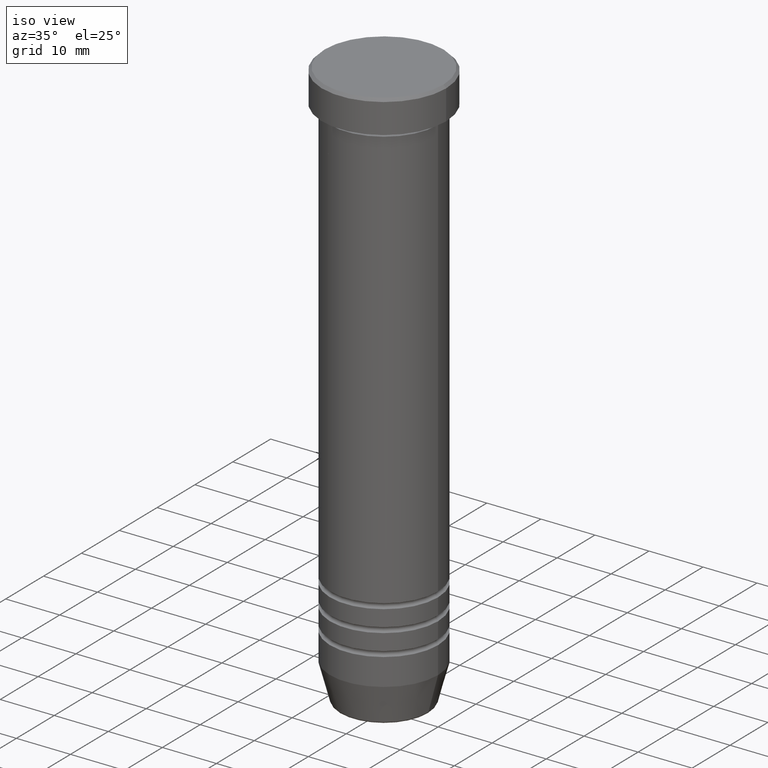
[diagram: clean part render]
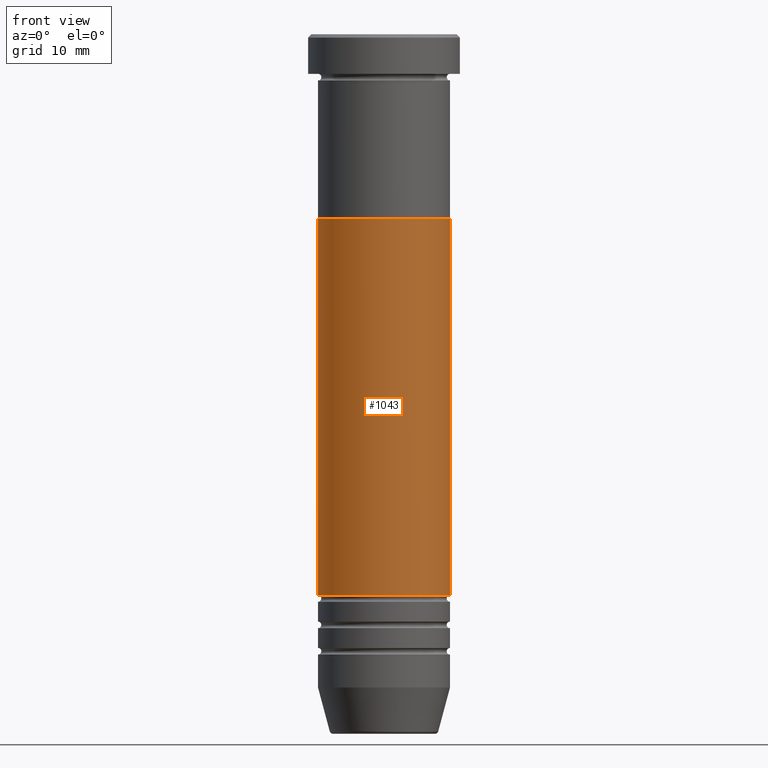
[diagram: tour spotlight — one face highlighted and labeled with its STEP entity id]
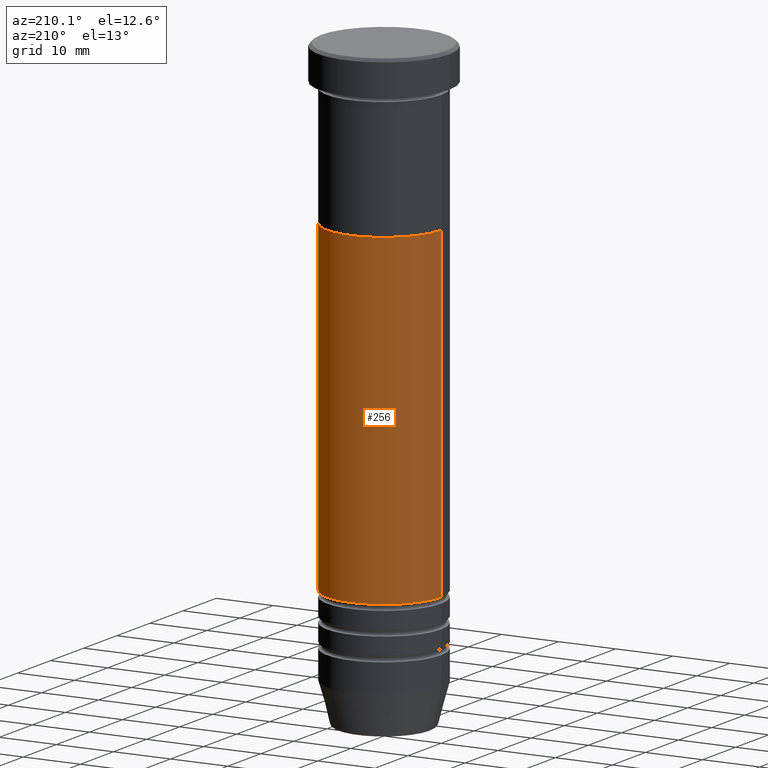
[diagram: tour spotlight — one face highlighted and labeled with its STEP entity id]
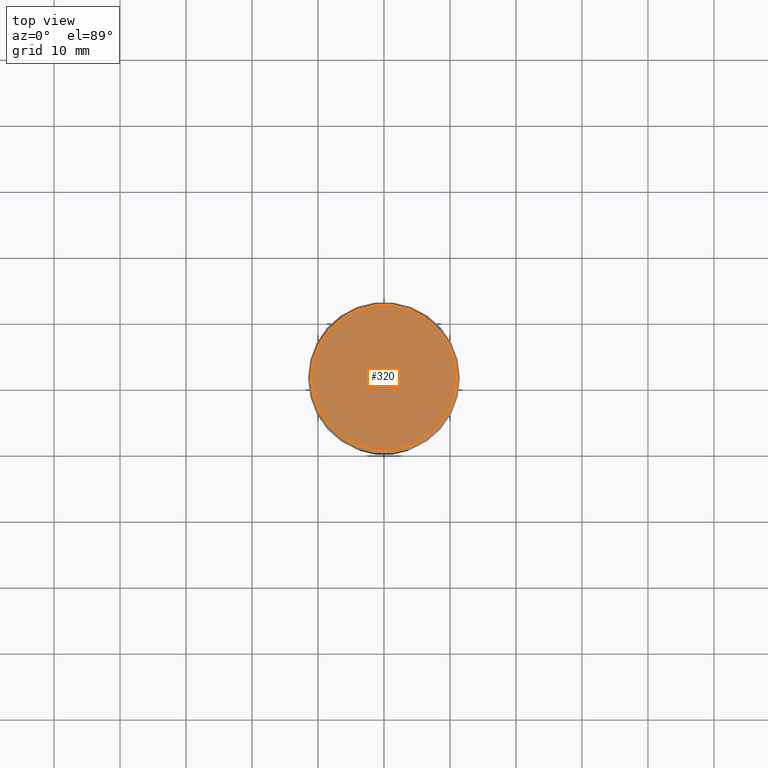
[diagram: tour spotlight — one face highlighted and labeled with its STEP entity id]
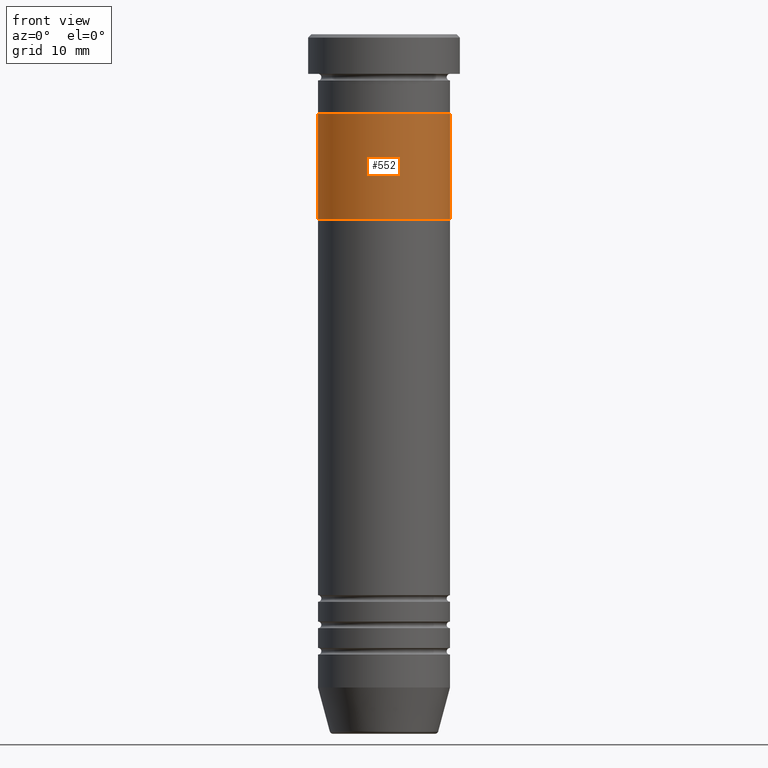
[diagram: tour spotlight — one face highlighted and labeled with its STEP entity id]
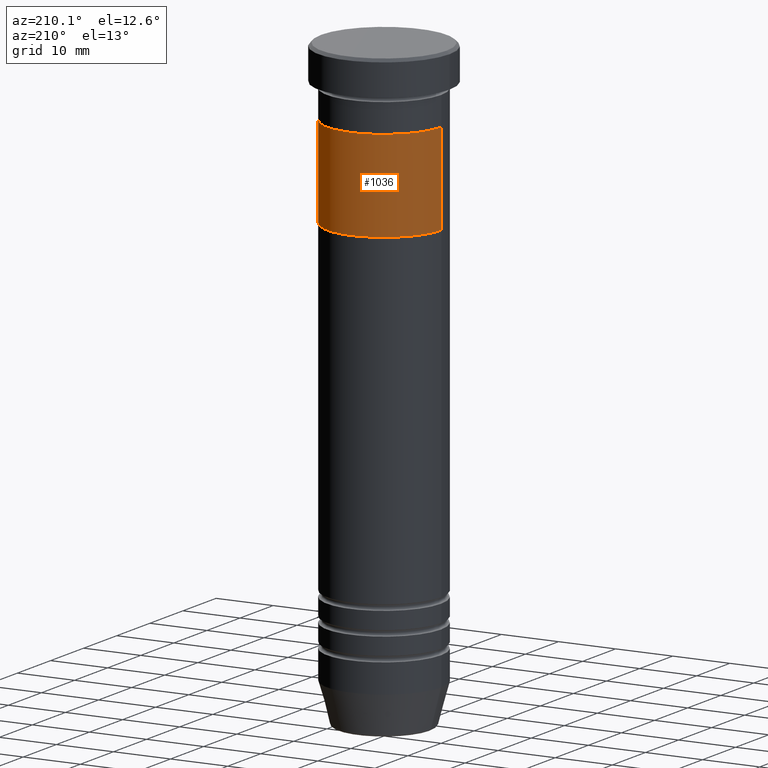
[diagram: tour spotlight — one face highlighted and labeled with its STEP entity id]
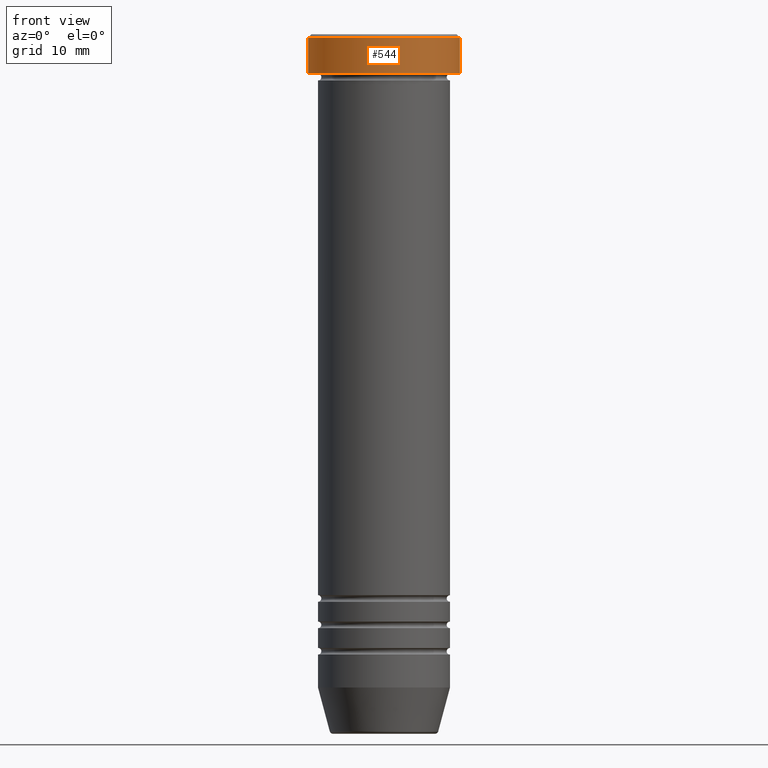
[diagram: tour spotlight — one face highlighted and labeled with its STEP entity id]
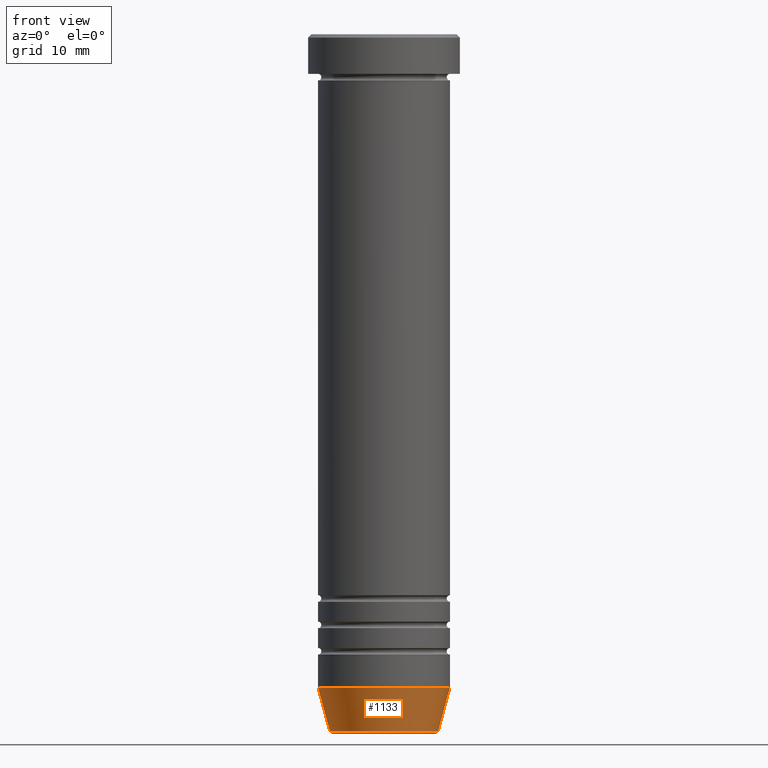
[diagram: tour spotlight — one face highlighted and labeled with its STEP entity id]
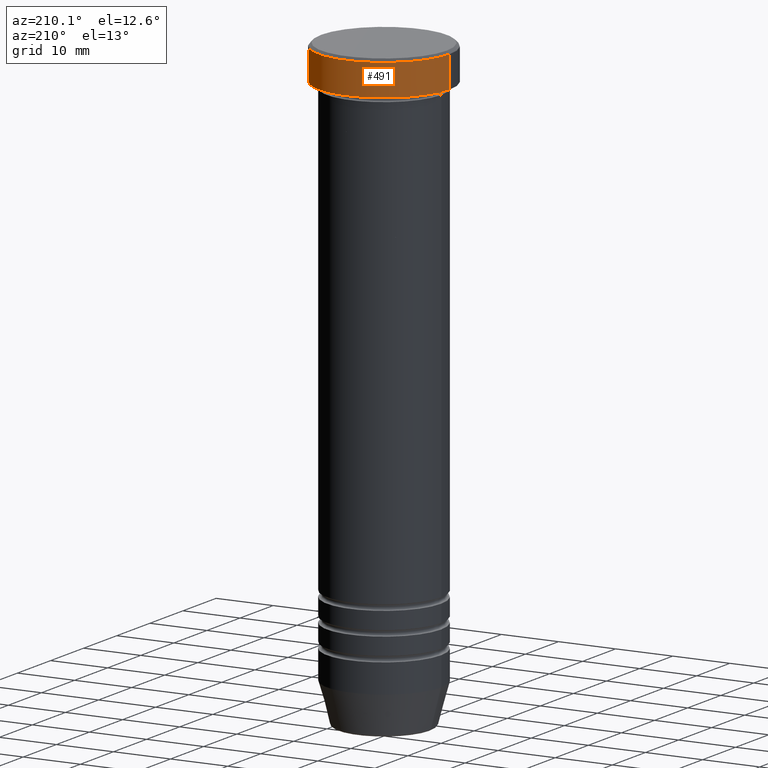
[diagram: tour spotlight — one face highlighted and labeled with its STEP entity id]
A machine part: a face-by-face anatomy tour. The part has 43 B-rep faces; the first image is the clean iso view, then the 8 largest visible faces are spotlighted one at a time (largest first), each with its STEP entity span.

Face 1 — front view, entity #1043. In plain terms, the highlighted cylindrical surface (partial cylindrical patch) has radius 10 mm, axis along (-0, -0, 1).
Definition (entity closure, byte-faithful):
#63 = EDGE_CURVE ( 'NONE', #527, #1062, #323, .T. ) ;
#109 = DIRECTION ( 'NONE',  ( 1.000000000000000000, 0.000000000000000000, 0.000000000000000000 ) ) ;
#119 = CARTESIAN_POINT ( 'NONE',  ( -10.00000000000000178, 1.224646799147353454E-15, -28.00000000000000000 ) ) ;
#137 = ORIENTED_EDGE ( 'NONE', *, *, #250, .F. ) ;
#154 = LINE ( 'NONE', #653, #208 ) ;
#208 = VECTOR ( 'NONE', #676, 1000.000000000000000 ) ;
#212 = CARTESIAN_POINT ( 'NONE',  ( -9.999999999999996447, 1.224646799147352862E-15, 0.000000000000000000 ) ) ;
#250 = EDGE_CURVE ( 'NONE', #527, #298, #738, .T. ) ;
#280 = ORIENTED_EDGE ( 'NONE', *, *, #392, .T. ) ;
#298 = VERTEX_POINT ( 'NONE', #119 ) ;
#323 = CIRCLE ( 'NONE', #452, 9.999999999999992895 ) ;
#342 = DIRECTION ( 'NONE',  ( 1.000000000000000000, 0.000000000000000000, 0.000000000000000000 ) ) ;
#351 = EDGE_CURVE ( 'NONE', #298, #782, #645, .T. ) ;
#359 = CARTESIAN_POINT ( 'NONE',  ( -9.999999999999992895, 1.224646799147352665E-15, -84.99999999999998579 ) ) ;
#360 = CYLINDRICAL_SURFACE ( 'NONE', #881, 9.999999999999996447 ) ;
#392 = EDGE_CURVE ( 'NONE', #1062, #782, #154, .T. ) ;
#452 = AXIS2_PLACEMENT_3D ( 'NONE', #1071, #1056, #342 ) ;
#469 = CARTESIAN_POINT ( 'NONE',  ( 9.999999999999992895, 0.000000000000000000, -84.99999999999998579 ) ) ;
#496 = AXIS2_PLACEMENT_3D ( 'NONE', #541, #884, #549 ) ;
#527 = VERTEX_POINT ( 'NONE', #359 ) ;
#541 = CARTESIAN_POINT ( 'NONE',  ( 0.000000000000000000, 0.000000000000000000, -28.00000000000000000 ) ) ;
#549 = DIRECTION ( 'NONE',  ( 1.000000000000000000, 0.000000000000000000, 0.000000000000000000 ) ) ;
#588 = ORIENTED_EDGE ( 'NONE', *, *, #351, .F. ) ;
#614 = EDGE_LOOP ( 'NONE', ( #137, #852, #280, #588 ) ) ;
#645 = CIRCLE ( 'NONE', #496, 10.00000000000000000 ) ;
#653 = CARTESIAN_POINT ( 'NONE',  ( 9.999999999999996447, 0.000000000000000000, 0.000000000000000000 ) ) ;
#676 = DIRECTION ( 'NONE',  ( -0.000000000000000000, -0.000000000000000000, 1.000000000000000000 ) ) ;
#687 = CARTESIAN_POINT ( 'NONE',  ( 10.00000000000000000, 0.000000000000000000, -28.00000000000000000 ) ) ;
#738 = LINE ( 'NONE', #212, #870 ) ;
#782 = VERTEX_POINT ( 'NONE', #687 ) ;
#803 = CARTESIAN_POINT ( 'NONE',  ( 0.000000000000000000, 0.000000000000000000, 0.000000000000000000 ) ) ;
#852 = ORIENTED_EDGE ( 'NONE', *, *, #63, .T. ) ;
#866 = FACE_OUTER_BOUND ( 'NONE', #614, .T. ) ;
#870 = VECTOR ( 'NONE', #1105, 1000.000000000000000 ) ;
#881 = AXIS2_PLACEMENT_3D ( 'NONE', #803, #904, #109 ) ;
#884 = DIRECTION ( 'NONE',  ( -0.000000000000000000, -0.000000000000000000, 1.000000000000000000 ) ) ;
#904 = DIRECTION ( 'NONE',  ( -0.000000000000000000, -0.000000000000000000, 1.000000000000000000 ) ) ;
#1043 = ADVANCED_FACE ( 'NONE', ( #866 ), #360, .T. ) ;
#1056 = DIRECTION ( 'NONE',  ( -0.000000000000000000, -0.000000000000000000, 1.000000000000000000 ) ) ;
#1062 = VERTEX_POINT ( 'NONE', #469 ) ;
#1071 = CARTESIAN_POINT ( 'NONE',  ( 0.000000000000000000, 0.000000000000000000, -84.99999999999998579 ) ) ;
#1105 = DIRECTION ( 'NONE',  ( -0.000000000000000000, -0.000000000000000000, 1.000000000000000000 ) ) ;

Face 2 — auxiliary view, entity #256. In plain terms, the highlighted cylindrical surface (partial cylindrical patch) has radius 10 mm, axis along (-0, -0, 1).
Definition (entity closure, byte-faithful):
#106 = AXIS2_PLACEMENT_3D ( 'NONE', #605, #352, #970 ) ;
#119 = CARTESIAN_POINT ( 'NONE',  ( -10.00000000000000178, 1.224646799147353454E-15, -28.00000000000000000 ) ) ;
#135 = CYLINDRICAL_SURFACE ( 'NONE', #455, 9.999999999999996447 ) ;
#154 = LINE ( 'NONE', #653, #208 ) ;
#208 = VECTOR ( 'NONE', #676, 1000.000000000000000 ) ;
#212 = CARTESIAN_POINT ( 'NONE',  ( -9.999999999999996447, 1.224646799147352862E-15, 0.000000000000000000 ) ) ;
#229 = CIRCLE ( 'NONE', #106, 9.999999999999992895 ) ;
#243 = CARTESIAN_POINT ( 'NONE',  ( 0.000000000000000000, 0.000000000000000000, 0.000000000000000000 ) ) ;
#250 = EDGE_CURVE ( 'NONE', #527, #298, #738, .T. ) ;
#256 = ADVANCED_FACE ( 'NONE', ( #1029 ), #135, .T. ) ;
#298 = VERTEX_POINT ( 'NONE', #119 ) ;
#304 = ORIENTED_EDGE ( 'NONE', *, *, #990, .F. ) ;
#332 = EDGE_LOOP ( 'NONE', ( #390, #718, #304, #641 ) ) ;
#352 = DIRECTION ( 'NONE',  ( -0.000000000000000000, -0.000000000000000000, 1.000000000000000000 ) ) ;
#359 = CARTESIAN_POINT ( 'NONE',  ( -9.999999999999992895, 1.224646799147352665E-15, -84.99999999999998579 ) ) ;
#390 = ORIENTED_EDGE ( 'NONE', *, *, #794, .T. ) ;
#392 = EDGE_CURVE ( 'NONE', #1062, #782, #154, .T. ) ;
#455 = AXIS2_PLACEMENT_3D ( 'NONE', #243, #594, #956 ) ;
#469 = CARTESIAN_POINT ( 'NONE',  ( 9.999999999999992895, 0.000000000000000000, -84.99999999999998579 ) ) ;
#527 = VERTEX_POINT ( 'NONE', #359 ) ;
#594 = DIRECTION ( 'NONE',  ( -0.000000000000000000, -0.000000000000000000, 1.000000000000000000 ) ) ;
#605 = CARTESIAN_POINT ( 'NONE',  ( 0.000000000000000000, 0.000000000000000000, -84.99999999999998579 ) ) ;
#641 = ORIENTED_EDGE ( 'NONE', *, *, #392, .F. ) ;
#653 = CARTESIAN_POINT ( 'NONE',  ( 9.999999999999996447, 0.000000000000000000, 0.000000000000000000 ) ) ;
#672 = DIRECTION ( 'NONE',  ( -0.000000000000000000, -0.000000000000000000, 1.000000000000000000 ) ) ;
#676 = DIRECTION ( 'NONE',  ( -0.000000000000000000, -0.000000000000000000, 1.000000000000000000 ) ) ;
#687 = CARTESIAN_POINT ( 'NONE',  ( 10.00000000000000000, 0.000000000000000000, -28.00000000000000000 ) ) ;
#718 = ORIENTED_EDGE ( 'NONE', *, *, #250, .T. ) ;
#738 = LINE ( 'NONE', #212, #870 ) ;
#782 = VERTEX_POINT ( 'NONE', #687 ) ;
#794 = EDGE_CURVE ( 'NONE', #1062, #527, #229, .T. ) ;
#870 = VECTOR ( 'NONE', #1105, 1000.000000000000000 ) ;
#940 = AXIS2_PLACEMENT_3D ( 'NONE', #977, #672, #1142 ) ;
#956 = DIRECTION ( 'NONE',  ( 1.000000000000000000, 0.000000000000000000, 0.000000000000000000 ) ) ;
#970 = DIRECTION ( 'NONE',  ( 1.000000000000000000, 0.000000000000000000, 0.000000000000000000 ) ) ;
#977 = CARTESIAN_POINT ( 'NONE',  ( 0.000000000000000000, 0.000000000000000000, -28.00000000000000000 ) ) ;
#990 = EDGE_CURVE ( 'NONE', #782, #298, #1089, .T. ) ;
#1029 = FACE_OUTER_BOUND ( 'NONE', #332, .T. ) ;
#1062 = VERTEX_POINT ( 'NONE', #469 ) ;
#1089 = CIRCLE ( 'NONE', #940, 10.00000000000000000 ) ;
#1105 = DIRECTION ( 'NONE',  ( -0.000000000000000000, -0.000000000000000000, 1.000000000000000000 ) ) ;
#1142 = DIRECTION ( 'NONE',  ( 1.000000000000000000, 0.000000000000000000, 0.000000000000000000 ) ) ;

Face 3 — top view, entity #320. In plain terms, the highlighted planar face has unit normal (0, -0, 1).
Definition (entity closure, byte-faithful):
#18 = EDGE_CURVE ( 'NONE', #869, #353, #345, .T. ) ;
#83 = ORIENTED_EDGE ( 'NONE', *, *, #1027, .T. ) ;
#178 = DIRECTION ( 'NONE',  ( 1.000000000000000000, 0.000000000000000000, 0.000000000000000000 ) ) ;
#195 = FACE_OUTER_BOUND ( 'NONE', #220, .T. ) ;
#220 = EDGE_LOOP ( 'NONE', ( #847, #83 ) ) ;
#254 = CARTESIAN_POINT ( 'NONE',  ( 0.000000000000000000, 0.000000000000000000, 0.000000000000000000 ) ) ;
#320 = ADVANCED_FACE ( 'NONE', ( #195 ), #815, .T. ) ;
#345 = CIRCLE ( 'NONE', #528, 11.00000000000000355 ) ;
#346 = AXIS2_PLACEMENT_3D ( 'NONE', #254, #408, #671 ) ;
#353 = VERTEX_POINT ( 'NONE', #985 ) ;
#408 = DIRECTION ( 'NONE',  ( 0.000000000000000000, -0.000000000000000000, 1.000000000000000000 ) ) ;
#495 = CARTESIAN_POINT ( 'NONE',  ( 0.000000000000000000, 0.000000000000000000, 0.000000000000000000 ) ) ;
#528 = AXIS2_PLACEMENT_3D ( 'NONE', #495, #837, #1129 ) ;
#668 = AXIS2_PLACEMENT_3D ( 'NONE', #959, #693, #178 ) ;
#671 = DIRECTION ( 'NONE',  ( 1.000000000000000000, 0.000000000000000000, 0.000000000000000000 ) ) ;
#693 = DIRECTION ( 'NONE',  ( -0.000000000000000000, -0.000000000000000000, 1.000000000000000000 ) ) ;
#802 = CIRCLE ( 'NONE', #668, 11.00000000000000355 ) ;
#815 = PLANE ( 'NONE',  #346 ) ;
#837 = DIRECTION ( 'NONE',  ( -0.000000000000000000, -0.000000000000000000, 1.000000000000000000 ) ) ;
#843 = CARTESIAN_POINT ( 'NONE',  ( -11.00000000000000355, 0.000000000000000000, 0.000000000000000000 ) ) ;
#847 = ORIENTED_EDGE ( 'NONE', *, *, #18, .T. ) ;
#869 = VERTEX_POINT ( 'NONE', #843 ) ;
#959 = CARTESIAN_POINT ( 'NONE',  ( 0.000000000000000000, 0.000000000000000000, 0.000000000000000000 ) ) ;
#985 = CARTESIAN_POINT ( 'NONE',  ( 11.00000000000000355, 1.377727649040772389E-15, 0.000000000000000000 ) ) ;
#1027 = EDGE_CURVE ( 'NONE', #353, #869, #802, .T. ) ;
#1129 = DIRECTION ( 'NONE',  ( 1.000000000000000000, 0.000000000000000000, 0.000000000000000000 ) ) ;

Face 4 — front view, entity #552. In plain terms, the highlighted cylindrical surface (partial cylindrical patch) has radius 10 mm, axis along (-0, -0, 1).
Definition (entity closure, byte-faithful):
#23 = DIRECTION ( 'NONE',  ( -0.000000000000000000, -0.000000000000000000, 1.000000000000000000 ) ) ;
#28 = EDGE_CURVE ( 'NONE', #508, #216, #510, .T. ) ;
#41 = CARTESIAN_POINT ( 'NONE',  ( 10.00000000000000000, 0.000000000000000000, -12.00000000000000000 ) ) ;
#42 = CARTESIAN_POINT ( 'NONE',  ( -10.00000000000000000, 1.224646799147353256E-15, -28.00000000000000000 ) ) ;
#45 = CYLINDRICAL_SURFACE ( 'NONE', #417, 10.00000000000000000 ) ;
#50 = DIRECTION ( 'NONE',  ( 0.000000000000000000, 0.000000000000000000, -1.000000000000000000 ) ) ;
#79 = DIRECTION ( 'NONE',  ( -0.000000000000000000, -0.000000000000000000, 1.000000000000000000 ) ) ;
#118 = VERTEX_POINT ( 'NONE', #858 ) ;
#144 = DIRECTION ( 'NONE',  ( -1.000000000000000000, 0.000000000000000000, 0.000000000000000000 ) ) ;
#216 = VERTEX_POINT ( 'NONE', #42 ) ;
#224 = CARTESIAN_POINT ( 'NONE',  ( 0.000000000000000000, 0.000000000000000000, -28.00000000000000000 ) ) ;
#231 = DIRECTION ( 'NONE',  ( 0.000000000000000000, 0.000000000000000000, -1.000000000000000000 ) ) ;
#375 = EDGE_CURVE ( 'NONE', #216, #118, #796, .T. ) ;
#378 = DIRECTION ( 'NONE',  ( -0.000000000000000000, -0.000000000000000000, 1.000000000000000000 ) ) ;
#402 = EDGE_CURVE ( 'NONE', #1115, #118, #878, .T. ) ;
#417 = AXIS2_PLACEMENT_3D ( 'NONE', #224, #23, #503 ) ;
#468 = LINE ( 'NONE', #810, #769 ) ;
#484 = EDGE_LOOP ( 'NONE', ( #488, #662, #620, #830 ) ) ;
#488 = ORIENTED_EDGE ( 'NONE', *, *, #375, .F. ) ;
#503 = DIRECTION ( 'NONE',  ( 1.000000000000000000, 0.000000000000000000, 0.000000000000000000 ) ) ;
#508 = VERTEX_POINT ( 'NONE', #546 ) ;
#510 = CIRCLE ( 'NONE', #812, 10.00000000000000000 ) ;
#546 = CARTESIAN_POINT ( 'NONE',  ( 10.00000000000000000, 0.000000000000000000, -28.00000000000000000 ) ) ;
#552 = ADVANCED_FACE ( 'NONE', ( #911 ), #45, .T. ) ;
#577 = CARTESIAN_POINT ( 'NONE',  ( 0.000000000000000000, 0.000000000000000000, -28.00000000000000000 ) ) ;
#620 = ORIENTED_EDGE ( 'NONE', *, *, #1064, .T. ) ;
#662 = ORIENTED_EDGE ( 'NONE', *, *, #28, .F. ) ;
#769 = VECTOR ( 'NONE', #378, 1000.000000000000000 ) ;
#796 = LINE ( 'NONE', #1078, #957 ) ;
#810 = CARTESIAN_POINT ( 'NONE',  ( 10.00000000000000000, 0.000000000000000000, -28.00000000000000000 ) ) ;
#812 = AXIS2_PLACEMENT_3D ( 'NONE', #577, #231, #941 ) ;
#830 = ORIENTED_EDGE ( 'NONE', *, *, #402, .T. ) ;
#858 = CARTESIAN_POINT ( 'NONE',  ( -10.00000000000000000, 1.224646799147353256E-15, -12.00000000000000000 ) ) ;
#878 = CIRCLE ( 'NONE', #980, 10.00000000000000000 ) ;
#911 = FACE_OUTER_BOUND ( 'NONE', #484, .T. ) ;
#941 = DIRECTION ( 'NONE',  ( -1.000000000000000000, 0.000000000000000000, 0.000000000000000000 ) ) ;
#946 = CARTESIAN_POINT ( 'NONE',  ( 0.000000000000000000, 0.000000000000000000, -12.00000000000000000 ) ) ;
#957 = VECTOR ( 'NONE', #79, 1000.000000000000000 ) ;
#980 = AXIS2_PLACEMENT_3D ( 'NONE', #946, #50, #144 ) ;
#1064 = EDGE_CURVE ( 'NONE', #508, #1115, #468, .T. ) ;
#1078 = CARTESIAN_POINT ( 'NONE',  ( -10.00000000000000000, 1.224646799147353256E-15, -28.00000000000000000 ) ) ;
#1115 = VERTEX_POINT ( 'NONE', #41 ) ;

Face 5 — auxiliary view, entity #1036. In plain terms, the highlighted cylindrical surface (partial cylindrical patch) has radius 10 mm, axis along (-0, -0, 1).
Definition (entity closure, byte-faithful):
#41 = CARTESIAN_POINT ( 'NONE',  ( 10.00000000000000000, 0.000000000000000000, -12.00000000000000000 ) ) ;
#42 = CARTESIAN_POINT ( 'NONE',  ( -10.00000000000000000, 1.224646799147353256E-15, -28.00000000000000000 ) ) ;
#79 = DIRECTION ( 'NONE',  ( -0.000000000000000000, -0.000000000000000000, 1.000000000000000000 ) ) ;
#118 = VERTEX_POINT ( 'NONE', #858 ) ;
#125 = AXIS2_PLACEMENT_3D ( 'NONE', #206, #427, #217 ) ;
#156 = DIRECTION ( 'NONE',  ( 1.000000000000000000, 0.000000000000000000, 0.000000000000000000 ) ) ;
#170 = EDGE_LOOP ( 'NONE', ( #920, #186, #840, #734 ) ) ;
#181 = AXIS2_PLACEMENT_3D ( 'NONE', #533, #885, #156 ) ;
#184 = EDGE_CURVE ( 'NONE', #216, #508, #1104, .T. ) ;
#186 = ORIENTED_EDGE ( 'NONE', *, *, #375, .T. ) ;
#206 = CARTESIAN_POINT ( 'NONE',  ( 0.000000000000000000, 0.000000000000000000, -28.00000000000000000 ) ) ;
#216 = VERTEX_POINT ( 'NONE', #42 ) ;
#217 = DIRECTION ( 'NONE',  ( -1.000000000000000000, 0.000000000000000000, 0.000000000000000000 ) ) ;
#246 = DIRECTION ( 'NONE',  ( 0.000000000000000000, 0.000000000000000000, -1.000000000000000000 ) ) ;
#263 = CARTESIAN_POINT ( 'NONE',  ( 0.000000000000000000, 0.000000000000000000, -12.00000000000000000 ) ) ;
#341 = DIRECTION ( 'NONE',  ( -1.000000000000000000, 0.000000000000000000, 0.000000000000000000 ) ) ;
#375 = EDGE_CURVE ( 'NONE', #216, #118, #796, .T. ) ;
#378 = DIRECTION ( 'NONE',  ( -0.000000000000000000, -0.000000000000000000, 1.000000000000000000 ) ) ;
#427 = DIRECTION ( 'NONE',  ( 0.000000000000000000, 0.000000000000000000, -1.000000000000000000 ) ) ;
#468 = LINE ( 'NONE', #810, #769 ) ;
#508 = VERTEX_POINT ( 'NONE', #546 ) ;
#525 = FACE_OUTER_BOUND ( 'NONE', #170, .T. ) ;
#533 = CARTESIAN_POINT ( 'NONE',  ( 0.000000000000000000, 0.000000000000000000, -28.00000000000000000 ) ) ;
#546 = CARTESIAN_POINT ( 'NONE',  ( 10.00000000000000000, 0.000000000000000000, -28.00000000000000000 ) ) ;
#734 = ORIENTED_EDGE ( 'NONE', *, *, #1064, .F. ) ;
#769 = VECTOR ( 'NONE', #378, 1000.000000000000000 ) ;
#796 = LINE ( 'NONE', #1078, #957 ) ;
#810 = CARTESIAN_POINT ( 'NONE',  ( 10.00000000000000000, 0.000000000000000000, -28.00000000000000000 ) ) ;
#840 = ORIENTED_EDGE ( 'NONE', *, *, #1009, .T. ) ;
#858 = CARTESIAN_POINT ( 'NONE',  ( -10.00000000000000000, 1.224646799147353256E-15, -12.00000000000000000 ) ) ;
#876 = CYLINDRICAL_SURFACE ( 'NONE', #181, 10.00000000000000000 ) ;
#885 = DIRECTION ( 'NONE',  ( -0.000000000000000000, -0.000000000000000000, 1.000000000000000000 ) ) ;
#920 = ORIENTED_EDGE ( 'NONE', *, *, #184, .F. ) ;
#957 = VECTOR ( 'NONE', #79, 1000.000000000000000 ) ;
#984 = AXIS2_PLACEMENT_3D ( 'NONE', #263, #246, #341 ) ;
#1009 = EDGE_CURVE ( 'NONE', #118, #1115, #1039, .T. ) ;
#1036 = ADVANCED_FACE ( 'NONE', ( #525 ), #876, .T. ) ;
#1039 = CIRCLE ( 'NONE', #984, 10.00000000000000000 ) ;
#1064 = EDGE_CURVE ( 'NONE', #508, #1115, #468, .T. ) ;
#1078 = CARTESIAN_POINT ( 'NONE',  ( -10.00000000000000000, 1.224646799147353256E-15, -28.00000000000000000 ) ) ;
#1104 = CIRCLE ( 'NONE', #125, 10.00000000000000000 ) ;
#1115 = VERTEX_POINT ( 'NONE', #41 ) ;

Face 6 — front view, entity #544. In plain terms, the highlighted cylindrical surface (partial cylindrical patch) has radius 11.5 mm, axis along (-0, -0, 1).
Definition (entity closure, byte-faithful):
#67 = VECTOR ( 'NONE', #1042, 1000.000000000000000 ) ;
#128 = ORIENTED_EDGE ( 'NONE', *, *, #685, .T. ) ;
#226 = AXIS2_PLACEMENT_3D ( 'NONE', #575, #839, #1025 ) ;
#236 = CARTESIAN_POINT ( 'NONE',  ( 11.50000000000000000, 0.000000000000000000, -0.4999999999999970024 ) ) ;
#258 = ORIENTED_EDGE ( 'NONE', *, *, #995, .F. ) ;
#336 = CARTESIAN_POINT ( 'NONE',  ( -11.50000000000000000, 1.408343819019456176E-15, 0.000000000000000000 ) ) ;
#354 = DIRECTION ( 'NONE',  ( 0.000000000000000000, 0.000000000000000000, -1.000000000000000000 ) ) ;
#381 = CIRCLE ( 'NONE', #1037, 11.50000000000000000 ) ;
#398 = CYLINDRICAL_SURFACE ( 'NONE', #226, 11.50000000000000000 ) ;
#412 = CARTESIAN_POINT ( 'NONE',  ( -11.50000000000000000, 1.408343819019456176E-15, -0.4999999999999970024 ) ) ;
#441 = EDGE_CURVE ( 'NONE', #581, #448, #505, .T. ) ;
#448 = VERTEX_POINT ( 'NONE', #236 ) ;
#465 = VERTEX_POINT ( 'NONE', #412 ) ;
#505 = LINE ( 'NONE', #1028, #67 ) ;
#515 = LINE ( 'NONE', #336, #603 ) ;
#521 = DIRECTION ( 'NONE',  ( 1.000000000000000000, 0.000000000000000000, 0.000000000000000000 ) ) ;
#523 = EDGE_CURVE ( 'NONE', #448, #465, #781, .T. ) ;
#535 = CARTESIAN_POINT ( 'NONE',  ( 0.000000000000000000, 0.000000000000000000, -6.000000000000000000 ) ) ;
#544 = ADVANCED_FACE ( 'NONE', ( #1114 ), #398, .T. ) ;
#575 = CARTESIAN_POINT ( 'NONE',  ( 0.000000000000000000, 0.000000000000000000, 0.000000000000000000 ) ) ;
#581 = VERTEX_POINT ( 'NONE', #846 ) ;
#603 = VECTOR ( 'NONE', #780, 1000.000000000000000 ) ;
#675 = EDGE_LOOP ( 'NONE', ( #258, #128, #1079, #922 ) ) ;
#685 = EDGE_CURVE ( 'NONE', #854, #581, #381, .T. ) ;
#780 = DIRECTION ( 'NONE',  ( -0.000000000000000000, -0.000000000000000000, 1.000000000000000000 ) ) ;
#781 = CIRCLE ( 'NONE', #1087, 11.50000000000000000 ) ;
#795 = CARTESIAN_POINT ( 'NONE',  ( 0.000000000000000000, 0.000000000000000000, -0.4999999999999970024 ) ) ;
#839 = DIRECTION ( 'NONE',  ( -0.000000000000000000, -0.000000000000000000, 1.000000000000000000 ) ) ;
#846 = CARTESIAN_POINT ( 'NONE',  ( 11.50000000000000000, 0.000000000000000000, -6.000000000000000000 ) ) ;
#854 = VERTEX_POINT ( 'NONE', #947 ) ;
#922 = ORIENTED_EDGE ( 'NONE', *, *, #523, .T. ) ;
#947 = CARTESIAN_POINT ( 'NONE',  ( -11.50000000000000000, 1.408343819019456176E-15, -6.000000000000000000 ) ) ;
#995 = EDGE_CURVE ( 'NONE', #854, #465, #515, .T. ) ;
#1025 = DIRECTION ( 'NONE',  ( 1.000000000000000000, 0.000000000000000000, 0.000000000000000000 ) ) ;
#1028 = CARTESIAN_POINT ( 'NONE',  ( 11.50000000000000000, 0.000000000000000000, 0.000000000000000000 ) ) ;
#1037 = AXIS2_PLACEMENT_3D ( 'NONE', #535, #1059, #521 ) ;
#1042 = DIRECTION ( 'NONE',  ( -0.000000000000000000, -0.000000000000000000, 1.000000000000000000 ) ) ;
#1059 = DIRECTION ( 'NONE',  ( -0.000000000000000000, -0.000000000000000000, 1.000000000000000000 ) ) ;
#1065 = DIRECTION ( 'NONE',  ( 1.000000000000000000, 0.000000000000000000, 0.000000000000000000 ) ) ;
#1079 = ORIENTED_EDGE ( 'NONE', *, *, #441, .T. ) ;
#1087 = AXIS2_PLACEMENT_3D ( 'NONE', #795, #354, #1065 ) ;
#1114 = FACE_OUTER_BOUND ( 'NONE', #675, .T. ) ;

Face 7 — front view, entity #1133. In plain terms, the highlighted conical surface has half-angle 15 deg.
Definition (entity closure, byte-faithful):
#37 = CARTESIAN_POINT ( 'NONE',  ( 0.000000000000000000, 0.000000000000000000, -98.99999999999997158 ) ) ;
#65 = VERTEX_POINT ( 'NONE', #597 ) ;
#148 = LINE ( 'NONE', #1048, #1055 ) ;
#152 = ORIENTED_EDGE ( 'NONE', *, *, #871, .F. ) ;
#165 = CARTESIAN_POINT ( 'NONE',  ( -8.124355652982135467, 9.949466145559276583E-16, -105.9999999999999858 ) ) ;
#182 = LINE ( 'NONE', #165, #253 ) ;
#197 = ORIENTED_EDGE ( 'NONE', *, *, #822, .F. ) ;
#235 = DIRECTION ( 'NONE',  ( 1.000000000000000000, 0.000000000000000000, 0.000000000000000000 ) ) ;
#242 = CARTESIAN_POINT ( 'NONE',  ( 0.000000000000000000, 0.000000000000000000, -105.9999999999999858 ) ) ;
#253 = VECTOR ( 'NONE', #261, 1000.000000000000000 ) ;
#261 = DIRECTION ( 'NONE',  ( -0.2588190451025213501, 3.169619151431772337E-17, 0.9659258262890680902 ) ) ;
#315 = CARTESIAN_POINT ( 'NONE',  ( -10.00000000000000000, 1.224646799147353256E-15, -98.99999999999997158 ) ) ;
#327 = CIRCLE ( 'NONE', #982, 10.00000000000000000 ) ;
#343 = CARTESIAN_POINT ( 'NONE',  ( 0.000000000000000000, 0.000000000000000000, -105.6294095225512422 ) ) ;
#347 = AXIS2_PLACEMENT_3D ( 'NONE', #343, #777, #1061 ) ;
#389 = DIRECTION ( 'NONE',  ( 1.000000000000000000, 0.000000000000000000, 0.000000000000000000 ) ) ;
#394 = DIRECTION ( 'NONE',  ( -0.000000000000000000, -0.000000000000000000, 1.000000000000000000 ) ) ;
#400 = CONICAL_SURFACE ( 'NONE', #741, 8.124355652982135467, 0.2617993877991500740 ) ;
#420 = EDGE_CURVE ( 'NONE', #1005, #808, #148, .T. ) ;
#433 = EDGE_LOOP ( 'NONE', ( #197, #1101, #478, #152 ) ) ;
#478 = ORIENTED_EDGE ( 'NONE', *, *, #420, .T. ) ;
#597 = CARTESIAN_POINT ( 'NONE',  ( -8.223655072137187716, 1.115877042642911856E-15, -105.6294095225512422 ) ) ;
#611 = CARTESIAN_POINT ( 'NONE',  ( 8.223655072137187716, 0.000000000000000000, -105.6294095225512422 ) ) ;
#670 = DIRECTION ( 'NONE',  ( 0.2588190451025213501, 0.000000000000000000, 0.9659258262890680902 ) ) ;
#694 = EDGE_CURVE ( 'NONE', #65, #1005, #765, .T. ) ;
#741 = AXIS2_PLACEMENT_3D ( 'NONE', #242, #848, #235 ) ;
#765 = CIRCLE ( 'NONE', #347, 8.223655072137187716 ) ;
#777 = DIRECTION ( 'NONE',  ( -0.000000000000000000, -0.000000000000000000, 1.000000000000000000 ) ) ;
#808 = VERTEX_POINT ( 'NONE', #964 ) ;
#822 = EDGE_CURVE ( 'NONE', #65, #943, #182, .T. ) ;
#848 = DIRECTION ( 'NONE',  ( -0.000000000000000000, -0.000000000000000000, 1.000000000000000000 ) ) ;
#871 = EDGE_CURVE ( 'NONE', #943, #808, #327, .T. ) ;
#943 = VERTEX_POINT ( 'NONE', #315 ) ;
#964 = CARTESIAN_POINT ( 'NONE',  ( 10.00000000000000000, 0.000000000000000000, -98.99999999999997158 ) ) ;
#982 = AXIS2_PLACEMENT_3D ( 'NONE', #37, #394, #389 ) ;
#1005 = VERTEX_POINT ( 'NONE', #611 ) ;
#1047 = FACE_OUTER_BOUND ( 'NONE', #433, .T. ) ;
#1048 = CARTESIAN_POINT ( 'NONE',  ( 8.124355652982135467, 0.000000000000000000, -105.9999999999999858 ) ) ;
#1055 = VECTOR ( 'NONE', #670, 1000.000000000000000 ) ;
#1061 = DIRECTION ( 'NONE',  ( -1.000000000000000000, 0.000000000000000000, 0.000000000000000000 ) ) ;
#1101 = ORIENTED_EDGE ( 'NONE', *, *, #694, .T. ) ;
#1133 = ADVANCED_FACE ( 'NONE', ( #1047 ), #400, .T. ) ;

Face 8 — auxiliary view, entity #491. In plain terms, the highlighted cylindrical surface (partial cylindrical patch) has radius 11.5 mm, axis along (-0, -0, 1).
Definition (entity closure, byte-faithful):
#32 = DIRECTION ( 'NONE',  ( 0.000000000000000000, 0.000000000000000000, -1.000000000000000000 ) ) ;
#67 = VECTOR ( 'NONE', #1042, 1000.000000000000000 ) ;
#84 = AXIS2_PLACEMENT_3D ( 'NONE', #534, #446, #790 ) ;
#85 = AXIS2_PLACEMENT_3D ( 'NONE', #608, #155, #429 ) ;
#101 = EDGE_CURVE ( 'NONE', #581, #854, #138, .T. ) ;
#138 = CIRCLE ( 'NONE', #84, 11.50000000000000000 ) ;
#147 = ORIENTED_EDGE ( 'NONE', *, *, #387, .T. ) ;
#155 = DIRECTION ( 'NONE',  ( -0.000000000000000000, -0.000000000000000000, 1.000000000000000000 ) ) ;
#192 = ORIENTED_EDGE ( 'NONE', *, *, #995, .T. ) ;
#236 = CARTESIAN_POINT ( 'NONE',  ( 11.50000000000000000, 0.000000000000000000, -0.4999999999999970024 ) ) ;
#282 = CARTESIAN_POINT ( 'NONE',  ( 0.000000000000000000, 0.000000000000000000, -0.4999999999999970024 ) ) ;
#287 = FACE_OUTER_BOUND ( 'NONE', #649, .T. ) ;
#336 = CARTESIAN_POINT ( 'NONE',  ( -11.50000000000000000, 1.408343819019456176E-15, 0.000000000000000000 ) ) ;
#387 = EDGE_CURVE ( 'NONE', #465, #448, #1102, .T. ) ;
#412 = CARTESIAN_POINT ( 'NONE',  ( -11.50000000000000000, 1.408343819019456176E-15, -0.4999999999999970024 ) ) ;
#429 = DIRECTION ( 'NONE',  ( 1.000000000000000000, 0.000000000000000000, 0.000000000000000000 ) ) ;
#441 = EDGE_CURVE ( 'NONE', #581, #448, #505, .T. ) ;
#446 = DIRECTION ( 'NONE',  ( -0.000000000000000000, -0.000000000000000000, 1.000000000000000000 ) ) ;
#448 = VERTEX_POINT ( 'NONE', #236 ) ;
#465 = VERTEX_POINT ( 'NONE', #412 ) ;
#491 = ADVANCED_FACE ( 'NONE', ( #287 ), #520, .T. ) ;
#505 = LINE ( 'NONE', #1028, #67 ) ;
#515 = LINE ( 'NONE', #336, #603 ) ;
#520 = CYLINDRICAL_SURFACE ( 'NONE', #85, 11.50000000000000000 ) ;
#534 = CARTESIAN_POINT ( 'NONE',  ( 0.000000000000000000, 0.000000000000000000, -6.000000000000000000 ) ) ;
#543 = ORIENTED_EDGE ( 'NONE', *, *, #441, .F. ) ;
#581 = VERTEX_POINT ( 'NONE', #846 ) ;
#600 = AXIS2_PLACEMENT_3D ( 'NONE', #282, #32, #927 ) ;
#603 = VECTOR ( 'NONE', #780, 1000.000000000000000 ) ;
#608 = CARTESIAN_POINT ( 'NONE',  ( 0.000000000000000000, 0.000000000000000000, 0.000000000000000000 ) ) ;
#649 = EDGE_LOOP ( 'NONE', ( #1060, #192, #147, #543 ) ) ;
#780 = DIRECTION ( 'NONE',  ( -0.000000000000000000, -0.000000000000000000, 1.000000000000000000 ) ) ;
#790 = DIRECTION ( 'NONE',  ( 1.000000000000000000, 0.000000000000000000, 0.000000000000000000 ) ) ;
#846 = CARTESIAN_POINT ( 'NONE',  ( 11.50000000000000000, 0.000000000000000000, -6.000000000000000000 ) ) ;
#854 = VERTEX_POINT ( 'NONE', #947 ) ;
#927 = DIRECTION ( 'NONE',  ( 1.000000000000000000, 0.000000000000000000, 0.000000000000000000 ) ) ;
#947 = CARTESIAN_POINT ( 'NONE',  ( -11.50000000000000000, 1.408343819019456176E-15, -6.000000000000000000 ) ) ;
#995 = EDGE_CURVE ( 'NONE', #854, #465, #515, .T. ) ;
#1028 = CARTESIAN_POINT ( 'NONE',  ( 11.50000000000000000, 0.000000000000000000, 0.000000000000000000 ) ) ;
#1042 = DIRECTION ( 'NONE',  ( -0.000000000000000000, -0.000000000000000000, 1.000000000000000000 ) ) ;
#1060 = ORIENTED_EDGE ( 'NONE', *, *, #101, .T. ) ;
#1102 = CIRCLE ( 'NONE', #600, 11.50000000000000000 ) ;